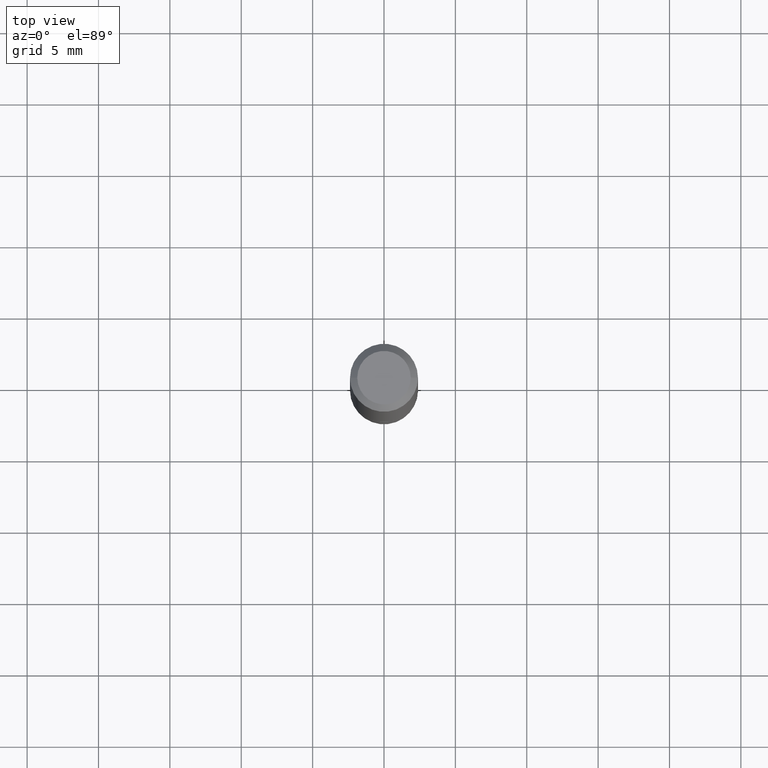
[diagram: clean part render]
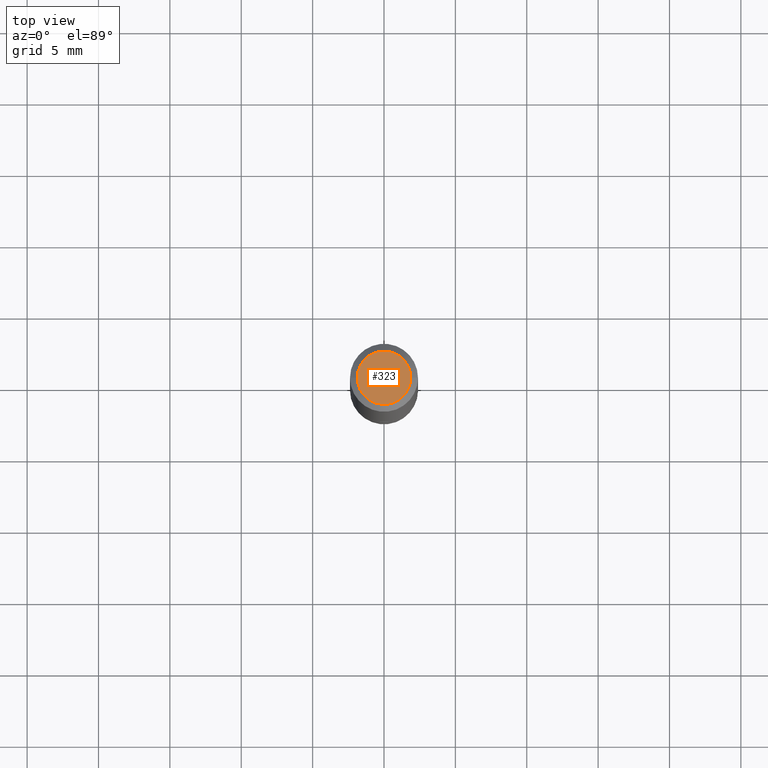
[diagram: same view with one face highlighted and labeled with its STEP entity id]
A machine part, top view. The second image highlights one B-rep face of the part: STEP entity #323.
In plain terms, the highlighted planar face has unit normal (0, -0, -1).
Its self-contained STEP definition (entity closure, byte-faithful):
#7 = EDGE_CURVE ( 'NONE', #216, #362, #335, .T. ) ;
#26 = DIRECTION ( 'NONE',  ( -2.445468806185136597E-29, 3.491481338843145583E-15, 1.000000000000000000 ) ) ;
#34 = DIRECTION ( 'NONE',  ( -2.445468806185136597E-29, 3.491481338843145583E-15, 1.000000000000000000 ) ) ;
#43 = CARTESIAN_POINT ( 'NONE',  ( 5.149934974793613022E-16, 0.07374999999999988509, -2.574967487396815385E-16 ) ) ;
#44 = EDGE_CURVE ( 'NONE', #362, #216, #181, .T. ) ;
#45 = PLANE ( 'NONE',  #119 ) ;
#48 = DIRECTION ( 'NONE',  ( -1.000000000000000000, 6.982962677686265922E-15, -4.876176775795935793E-29 ) ) ;
#115 = ORIENTED_EDGE ( 'NONE', *, *, #7, .T. ) ;
#119 = AXIS2_PLACEMENT_3D ( 'NONE', #43, #301, #48 ) ;
#134 = AXIS2_PLACEMENT_3D ( 'NONE', #306, #26, #202 ) ;
#150 = CARTESIAN_POINT ( 'NONE',  ( 0.000000000000000000, 0.000000000000000000, 0.000000000000000000 ) ) ;
#156 = FACE_OUTER_BOUND ( 'NONE', #241, .T. ) ;
#181 = CIRCLE ( 'NONE', #217, 0.07374999999999988509 ) ;
#202 = DIRECTION ( 'NONE',  ( 1.000000000000000000, -6.982962677686265922E-15, 4.876176775795935232E-29 ) ) ;
#216 = VERTEX_POINT ( 'NONE', #353 ) ;
#217 = AXIS2_PLACEMENT_3D ( 'NONE', #150, #34, #296 ) ;
#241 = EDGE_LOOP ( 'NONE', ( #313, #115 ) ) ;
#268 = CARTESIAN_POINT ( 'NONE',  ( -0.07374999999999988509, 5.499083108677923596E-16, -3.723527850031187664E-30 ) ) ;
#296 = DIRECTION ( 'NONE',  ( 1.000000000000000000, -6.982962677686265922E-15, 4.876176775795935232E-29 ) ) ;
#301 = DIRECTION ( 'NONE',  ( 2.438088387897960049E-29, -3.491481338843145188E-15, -1.000000000000000000 ) ) ;
#306 = CARTESIAN_POINT ( 'NONE',  ( 0.000000000000000000, 0.000000000000000000, 0.000000000000000000 ) ) ;
#313 = ORIENTED_EDGE ( 'NONE', *, *, #44, .T. ) ;
#323 = ADVANCED_FACE ( 'NONE', ( #156 ), #45, .F. ) ;
#335 = CIRCLE ( 'NONE', #134, 0.07374999999999988509 ) ;
#353 = CARTESIAN_POINT ( 'NONE',  ( 0.07374999999999988509, -6.094815207017961198E-16, 3.931526600461598749E-30 ) ) ;
#362 = VERTEX_POINT ( 'NONE', #268 ) ;